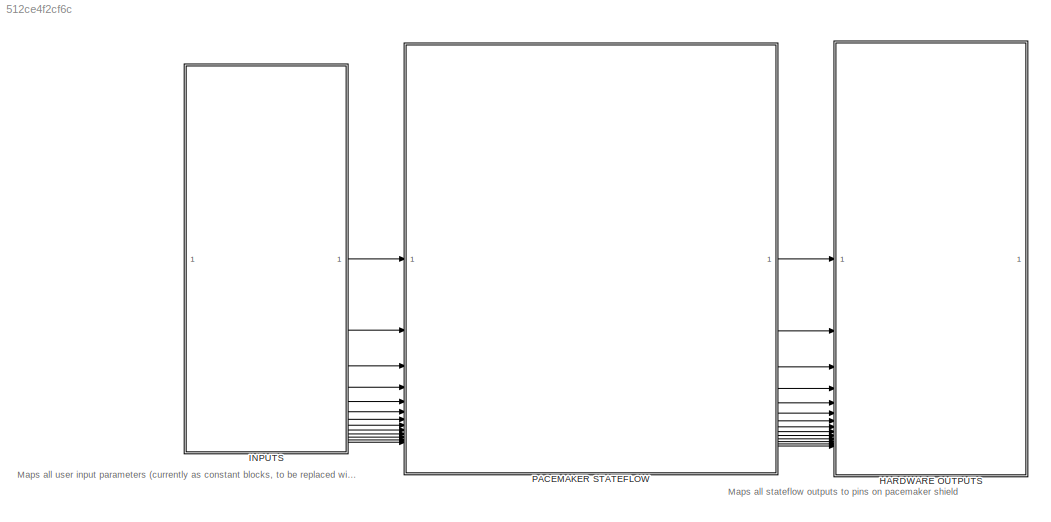
MODEL slx_512ce4f2cf6c
KIND model
CONFIG AbsTol = auto
CONFIG EnableMultiTasking = on
CONFIG FixedStep = 1e-3
CONFIG MaxStep = auto
CONFIG MinStep = auto
CONFIG RelTol = 1e-3
CONFIG SampleTimeConstraint = Unconstrained
CONFIG SolverName = FixedStepAuto
CONFIG StartTime = 0.0
CONFIG StopTime = 10
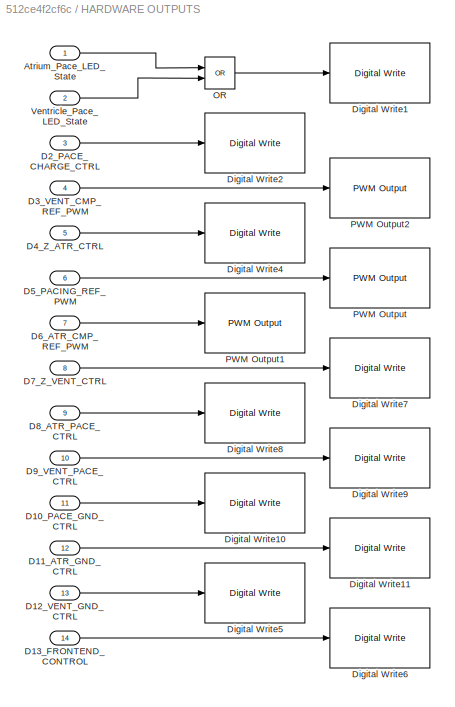
BLOCK [SubSystem] HARDWARE OUTPUTS
BLOCK [Inport] HARDWARE OUTPUTS/Atrium_Pace_LED_State
BLOCK [Inport] HARDWARE OUTPUTS/D10_PACE_GND_CTRL
  Port = 11
BLOCK [Inport] HARDWARE OUTPUTS/D11_ATR_GND_CTRL
  Port = 12
BLOCK [Inport] HARDWARE OUTPUTS/D12_VENT_GND_CTRL
  Port = 13
BLOCK [Inport] HARDWARE OUTPUTS/D13_FRONTEND_CONTROL
  Port = 14
BLOCK [Inport] HARDWARE OUTPUTS/D2_PACE_CHARGE_CTRL
  Port = 3
BLOCK [Inport] HARDWARE OUTPUTS/D3_VENT_CMP_REF_PWM
  Port = 4
BLOCK [Inport] HARDWARE OUTPUTS/D4_Z_ATR_CTRL
  Port = 5
BLOCK [Inport] HARDWARE OUTPUTS/D5_PACING_REF_PWM
  Port = 6
BLOCK [Inport] HARDWARE OUTPUTS/D6_ATR_CMP_REF_PWM
  Port = 7
BLOCK [Inport] HARDWARE OUTPUTS/D7_Z_VENT_CTRL
  Port = 8
BLOCK [Inport] HARDWARE OUTPUTS/D8_ATR_PACE_CTRL
  Port = 9
BLOCK [Inport] HARDWARE OUTPUTS/D9_VENT_PACE_CTRL
  Port = 10
BLOCK [Reference] HARDWARE OUTPUTS/Digital Write1  REF=frdmk64flib/Digital Write
  SourceBlock = frdmk64flib/Digital Write
  SourceType = freedomk64f.DigitalWrite
BLOCK [Reference] HARDWARE OUTPUTS/Digital Write10  REF=frdmk64flib/Digital Write
  SourceBlock = frdmk64flib/Digital Write
  SourceType = freedomk64f.DigitalWrite
BLOCK [Reference] HARDWARE OUTPUTS/Digital Write11  REF=frdmk64flib/Digital Write
  SourceBlock = frdmk64flib/Digital Write
  SourceType = freedomk64f.DigitalWrite
BLOCK [Reference] HARDWARE OUTPUTS/Digital Write2  REF=frdmk64flib/Digital Write
  SourceBlock = frdmk64flib/Digital Write
  SourceType = freedomk64f.DigitalWrite
BLOCK [Reference] HARDWARE OUTPUTS/Digital Write4  REF=frdmk64flib/Digital Write
  SourceBlock = frdmk64flib/Digital Write
  SourceType = freedomk64f.DigitalWrite
BLOCK [Reference] HARDWARE OUTPUTS/Digital Write5  REF=frdmk64flib/Digital Write
  SourceBlock = frdmk64flib/Digital Write
  SourceType = freedomk64f.DigitalWrite
BLOCK [Reference] HARDWARE OUTPUTS/Digital Write6  REF=frdmk64flib/Digital Write
  SourceBlock = frdmk64flib/Digital Write
  SourceType = freedomk64f.DigitalWrite
BLOCK [Reference] HARDWARE OUTPUTS/Digital Write7  REF=frdmk64flib/Digital Write
  SourceBlock = frdmk64flib/Digital Write
  SourceType = freedomk64f.DigitalWrite
BLOCK [Reference] HARDWARE OUTPUTS/Digital Write8  REF=frdmk64flib/Digital Write
  SourceBlock = frdmk64flib/Digital Write
  SourceType = freedomk64f.DigitalWrite
BLOCK [Reference] HARDWARE OUTPUTS/Digital Write9  REF=frdmk64flib/Digital Write
  SourceBlock = frdmk64flib/Digital Write
  SourceType = freedomk64f.DigitalWrite
BLOCK [Logic] HARDWARE OUTPUTS/OR
  AllPortsSameDT = off
  IconShape = distinctive
  Operator = OR
  OutDataTypeStr = boolean
BLOCK [Reference] HARDWARE OUTPUTS/PWM Output  REF=frdmk64flib/PWM Output
  SourceBlock = frdmk64flib/PWM Output
  SourceType = freedomk64f.PWMOutput
BLOCK [Reference] HARDWARE OUTPUTS/PWM Output1  REF=frdmk64flib/PWM Output
  SourceBlock = frdmk64flib/PWM Output
  SourceType = freedomk64f.PWMOutput
BLOCK [Reference] HARDWARE OUTPUTS/PWM Output2  REF=frdmk64flib/PWM Output
  SourceBlock = frdmk64flib/PWM Output
  SourceType = freedomk64f.PWMOutput
BLOCK [Inport] HARDWARE OUTPUTS/Ventricle_Pace_LED_State
  Port = 2
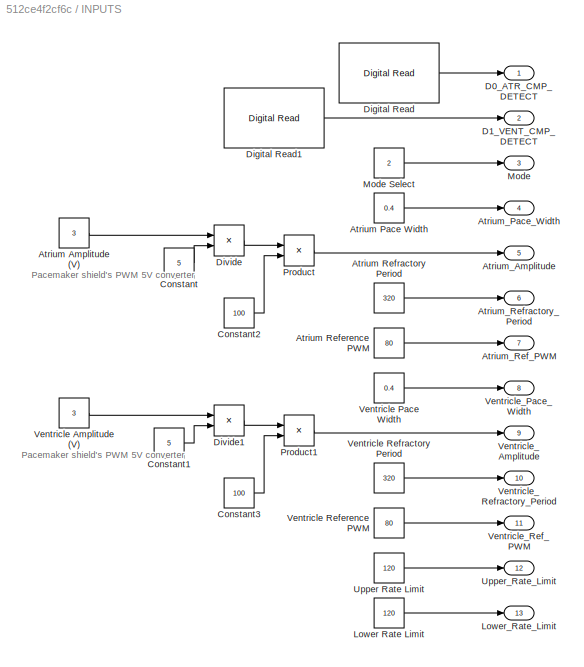
BLOCK [SubSystem] INPUTS
BLOCK [Constant] INPUTS/Atrium Amplitude (V)
  Value = 3
BLOCK [Constant] INPUTS/Atrium Pace Width
  Value = 0.4
BLOCK [Constant] INPUTS/Atrium Reference PWM
  Value = 80
BLOCK [Constant] INPUTS/Atrium Refractory Period
  Value = 320
BLOCK [Outport] INPUTS/Atrium_Amplitude
  Port = 5
BLOCK [Outport] INPUTS/Atrium_Pace_Width
  Port = 4
BLOCK [Outport] INPUTS/Atrium_Ref_PWM
  Port = 7
BLOCK [Outport] INPUTS/Atrium_Refractory_Period
  Port = 6
BLOCK [Constant] INPUTS/Constant
  Value = 5
BLOCK [Constant] INPUTS/Constant1
  Value = 5
BLOCK [Constant] INPUTS/Constant2
  Value = 100
BLOCK [Constant] INPUTS/Constant3
  Value = 100
BLOCK [Outport] INPUTS/D0_ATR_CMP_DETECT
BLOCK [Outport] INPUTS/D1_VENT_CMP_DETECT
  Port = 2
BLOCK [Reference] INPUTS/Digital Read  REF=frdmk64flib/Digital Read
  SourceBlock = frdmk64flib/Digital Read
  SourceType = freedomk64f.DigitalRead
BLOCK [Reference] INPUTS/Digital Read1  REF=frdmk64flib/Digital Read
  SourceBlock = frdmk64flib/Digital Read
  SourceType = freedomk64f.DigitalRead
BLOCK [Product] INPUTS/Divide
  Inputs = */
BLOCK [Product] INPUTS/Divide1
  Inputs = */
BLOCK [Constant] INPUTS/Lower Rate Limit
  Value = 120
BLOCK [Outport] INPUTS/Lower_Rate_Limit
  Port = 13
BLOCK [Outport] INPUTS/Mode
  Port = 3
BLOCK [Constant] INPUTS/Mode Select
  Value = 2
BLOCK [Product] INPUTS/Product
BLOCK [Product] INPUTS/Product1
BLOCK [Constant] INPUTS/Upper Rate Limit
  Value = 120
BLOCK [Outport] INPUTS/Upper_Rate_Limit
  Port = 12
BLOCK [Constant] INPUTS/Ventricle Amplitude (V)
  Value = 3
BLOCK [Constant] INPUTS/Ventricle Pace Width
  Value = 0.4
BLOCK [Constant] INPUTS/Ventricle Reference PWM
  Value = 80
BLOCK [Constant] INPUTS/Ventricle Refractory Period
  Value = 320
BLOCK [Outport] INPUTS/Ventricle_Amplitude
  Port = 9
BLOCK [Outport] INPUTS/Ventricle_Pace_Width
  Port = 8
BLOCK [Outport] INPUTS/Ventricle_Ref_PWM
  Port = 11
BLOCK [Outport] INPUTS/Ventricle_Refractory_Period
  Port = 10
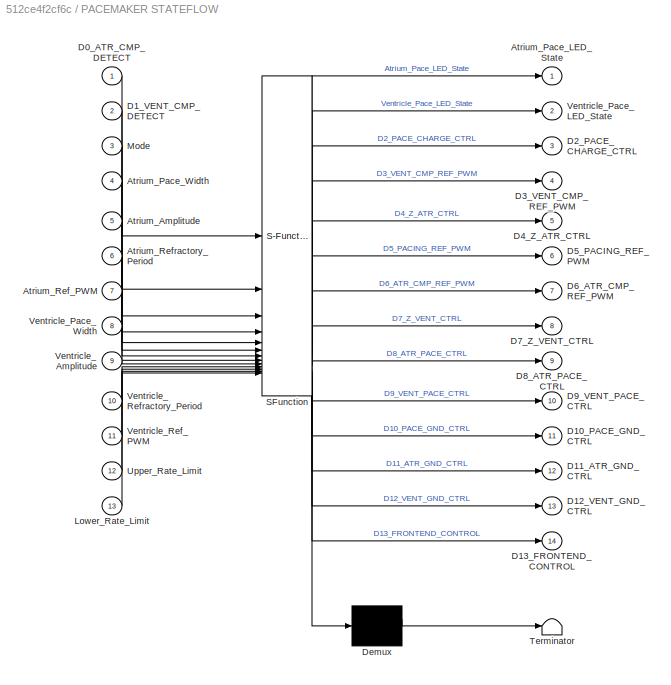
BLOCK [SubSystem] PACEMAKER STATEFLOW
  ErrorFcn = Stateflow.Translate.translate
  PermitHierarchicalResolution = ExplicitOnly
  SFBlockType = Chart
  TreatAsAtomicUnit = on
BLOCK [Demux] PACEMAKER STATEFLOW/ Demux 
  Outputs = 1
BLOCK [S-Function] PACEMAKER STATEFLOW/ SFunction 
  EnableBusSupport = on
  FunctionName = sf_sfun
  PortCounts = [13 15]
  SFcnIsStateOwnerBlock = off
  SFunctionDeploymentMode = off
  Tag = Stateflow S-Function 3
BLOCK [Terminator] PACEMAKER STATEFLOW/ Terminator 
BLOCK [Inport] PACEMAKER STATEFLOW/Atrium_Amplitude
  Port = 5
BLOCK [Outport] PACEMAKER STATEFLOW/Atrium_Pace_LED_State
BLOCK [Inport] PACEMAKER STATEFLOW/Atrium_Pace_Width
  Port = 4
BLOCK [Inport] PACEMAKER STATEFLOW/Atrium_Ref_PWM
  Port = 7
BLOCK [Inport] PACEMAKER STATEFLOW/Atrium_Refractory_Period
  Port = 6
BLOCK [Inport] PACEMAKER STATEFLOW/D0_ATR_CMP_DETECT
BLOCK [Outport] PACEMAKER STATEFLOW/D10_PACE_GND_CTRL
  Port = 11
BLOCK [Outport] PACEMAKER STATEFLOW/D11_ATR_GND_CTRL
  Port = 12
BLOCK [Outport] PACEMAKER STATEFLOW/D12_VENT_GND_CTRL
  Port = 13
BLOCK [Outport] PACEMAKER STATEFLOW/D13_FRONTEND_CONTROL
  Port = 14
BLOCK [Inport] PACEMAKER STATEFLOW/D1_VENT_CMP_DETECT
  Port = 2
BLOCK [Outport] PACEMAKER STATEFLOW/D2_PACE_CHARGE_CTRL
  Port = 3
BLOCK [Outport] PACEMAKER STATEFLOW/D3_VENT_CMP_REF_PWM
  Port = 4
BLOCK [Outport] PACEMAKER STATEFLOW/D4_Z_ATR_CTRL
  Port = 5
BLOCK [Outport] PACEMAKER STATEFLOW/D5_PACING_REF_PWM
  Port = 6
BLOCK [Outport] PACEMAKER STATEFLOW/D6_ATR_CMP_REF_PWM
  Port = 7
BLOCK [Outport] PACEMAKER STATEFLOW/D7_Z_VENT_CTRL
  Port = 8
BLOCK [Outport] PACEMAKER STATEFLOW/D8_ATR_PACE_CTRL
  Port = 9
BLOCK [Outport] PACEMAKER STATEFLOW/D9_VENT_PACE_CTRL
  Port = 10
BLOCK [Inport] PACEMAKER STATEFLOW/Lower_Rate_Limit
  Port = 13
BLOCK [Inport] PACEMAKER STATEFLOW/Mode
  Port = 3
BLOCK [Inport] PACEMAKER STATEFLOW/Upper_Rate_Limit
  Port = 12
BLOCK [Inport] PACEMAKER STATEFLOW/Ventricle_Amplitude
  Port = 9
BLOCK [Outport] PACEMAKER STATEFLOW/Ventricle_Pace_LED_State
  Port = 2
BLOCK [Inport] PACEMAKER STATEFLOW/Ventricle_Pace_Width
  Port = 8
BLOCK [Inport] PACEMAKER STATEFLOW/Ventricle_Ref_PWM
  Port = 11
BLOCK [Inport] PACEMAKER STATEFLOW/Ventricle_Refractory_Period
  Port = 10
ANNOTATION (root): Maps all stateflow outputs to pins on pacemaker shield
ANNOTATION (root): Maps all user input parameters (currently as constant blocks, to be replaced with serial communication in later stage)
ANNOTATION INPUTS: Pacemaker shield's PWM 5V converter
LINE HARDWARE OUTPUTS/Atrium_Pace_LED_State:1 -> HARDWARE OUTPUTS/OR:1
LINE HARDWARE OUTPUTS/D10_PACE_GND_CTRL:1 -> HARDWARE OUTPUTS/Digital Write10:1
LINE HARDWARE OUTPUTS/D11_ATR_GND_CTRL:1 -> HARDWARE OUTPUTS/Digital Write11:1
LINE HARDWARE OUTPUTS/D12_VENT_GND_CTRL:1 -> HARDWARE OUTPUTS/Digital Write5:1
LINE HARDWARE OUTPUTS/D13_FRONTEND_CONTROL:1 -> HARDWARE OUTPUTS/Digital Write6:1
LINE HARDWARE OUTPUTS/D2_PACE_CHARGE_CTRL:1 -> HARDWARE OUTPUTS/Digital Write2:1
LINE HARDWARE OUTPUTS/D3_VENT_CMP_REF_PWM:1 -> HARDWARE OUTPUTS/PWM Output2:1
LINE HARDWARE OUTPUTS/D4_Z_ATR_CTRL:1 -> HARDWARE OUTPUTS/Digital Write4:1
LINE HARDWARE OUTPUTS/D5_PACING_REF_PWM:1 -> HARDWARE OUTPUTS/PWM Output:1
LINE HARDWARE OUTPUTS/D6_ATR_CMP_REF_PWM:1 -> HARDWARE OUTPUTS/PWM Output1:1
LINE HARDWARE OUTPUTS/D7_Z_VENT_CTRL:1 -> HARDWARE OUTPUTS/Digital Write7:1
LINE HARDWARE OUTPUTS/D8_ATR_PACE_CTRL:1 -> HARDWARE OUTPUTS/Digital Write8:1
LINE HARDWARE OUTPUTS/D9_VENT_PACE_CTRL:1 -> HARDWARE OUTPUTS/Digital Write9:1
LINE HARDWARE OUTPUTS/OR:1 -> HARDWARE OUTPUTS/Digital Write1:1
LINE HARDWARE OUTPUTS/Ventricle_Pace_LED_State:1 -> HARDWARE OUTPUTS/OR:2
LINE INPUTS/Atrium Amplitude (V):1 -> INPUTS/Divide:1
LINE INPUTS/Atrium Pace Width:1 -> INPUTS/Atrium_Pace_Width:1
LINE INPUTS/Atrium Reference PWM:1 -> INPUTS/Atrium_Ref_PWM:1
LINE INPUTS/Atrium Refractory Period:1 -> INPUTS/Atrium_Refractory_Period:1
LINE INPUTS/Constant1:1 -> INPUTS/Divide1:2
LINE INPUTS/Constant2:1 -> INPUTS/Product:2
LINE INPUTS/Constant3:1 -> INPUTS/Product1:2
LINE INPUTS/Constant:1 -> INPUTS/Divide:2
LINE INPUTS/Digital Read1:1 -> INPUTS/D1_VENT_CMP_DETECT:1
LINE INPUTS/Digital Read:1 -> INPUTS/D0_ATR_CMP_DETECT:1
LINE INPUTS/Divide1:1 -> INPUTS/Product1:1
LINE INPUTS/Divide:1 -> INPUTS/Product:1
LINE INPUTS/Lower Rate Limit:1 -> INPUTS/Lower_Rate_Limit:1
LINE INPUTS/Mode Select:1 -> INPUTS/Mode:1
LINE INPUTS/Product1:1 -> INPUTS/Ventricle_Amplitude:1
LINE INPUTS/Product:1 -> INPUTS/Atrium_Amplitude:1
LINE INPUTS/Upper Rate Limit:1 -> INPUTS/Upper_Rate_Limit:1
LINE INPUTS/Ventricle Amplitude (V):1 -> INPUTS/Divide1:1
LINE INPUTS/Ventricle Pace Width:1 -> INPUTS/Ventricle_Pace_Width:1
LINE INPUTS/Ventricle Reference PWM:1 -> INPUTS/Ventricle_Ref_PWM:1
LINE INPUTS/Ventricle Refractory Period:1 -> INPUTS/Ventricle_Refractory_Period:1
LINE INPUTS:1 -> PACEMAKER STATEFLOW:1
LINE INPUTS:10 -> PACEMAKER STATEFLOW:10
LINE INPUTS:11 -> PACEMAKER STATEFLOW:11
LINE INPUTS:12 -> PACEMAKER STATEFLOW:12
LINE INPUTS:13 -> PACEMAKER STATEFLOW:13
LINE INPUTS:2 -> PACEMAKER STATEFLOW:2
LINE INPUTS:3 -> PACEMAKER STATEFLOW:3
LINE INPUTS:4 -> PACEMAKER STATEFLOW:4
LINE INPUTS:5 -> PACEMAKER STATEFLOW:5
LINE INPUTS:6 -> PACEMAKER STATEFLOW:6
LINE INPUTS:7 -> PACEMAKER STATEFLOW:7
LINE INPUTS:8 -> PACEMAKER STATEFLOW:8
LINE INPUTS:9 -> PACEMAKER STATEFLOW:9
LINE PACEMAKER STATEFLOW:1 -> HARDWARE OUTPUTS:1
LINE PACEMAKER STATEFLOW:10 -> HARDWARE OUTPUTS:10
LINE PACEMAKER STATEFLOW:11 -> HARDWARE OUTPUTS:11
LINE PACEMAKER STATEFLOW:12 -> HARDWARE OUTPUTS:12
LINE PACEMAKER STATEFLOW:13 -> HARDWARE OUTPUTS:13
LINE PACEMAKER STATEFLOW:14 -> HARDWARE OUTPUTS:14
LINE PACEMAKER STATEFLOW:2 -> HARDWARE OUTPUTS:2
LINE PACEMAKER STATEFLOW:3 -> HARDWARE OUTPUTS:3
LINE PACEMAKER STATEFLOW:4 -> HARDWARE OUTPUTS:4
LINE PACEMAKER STATEFLOW:5 -> HARDWARE OUTPUTS:5
LINE PACEMAKER STATEFLOW:6 -> HARDWARE OUTPUTS:6
LINE PACEMAKER STATEFLOW:7 -> HARDWARE OUTPUTS:7
LINE PACEMAKER STATEFLOW:8 -> HARDWARE OUTPUTS:8
LINE PACEMAKER STATEFLOW:9 -> HARDWARE OUTPUTS:9
CHART PACEMAKER STATEFLOW states=16 transitions=31
  STATE_LABEL 'AOO'
  STATE_LABEL 'Pace\n\nentry:\nD5_PACING_REF_PWM = 0\nD2_PACE_CHARGE_CTRL=0;\nD10_PACE_GND_CTRL=1;\nD8_ATR_PACE_CTRL=1;\nD11_ATR_GND_CTRL=0;\nD4_Z_ATR_CTRL=0;\nD7_Z_VENT_CTRL=0;\nD12_VENT_GND_CTRL=0;\nD9_VENT_PACE_CTRL=0;\nAtrium_Pace_LED_State=1;\n'  <repeated x4 — deduplicated; at blocks: PACEMAKER STATEFLOW>
  STATE_LABEL 'Refractory\n\nentry:\nD10_PACE_GND_CTRL=1;\nD9_VENT_PACE_CTRL=0;\nD4_Z_ATR_CTRL=0;\nD7_Z_VENT_CTRL=0;\nD8_ATR_PACE_CTRL=0;\nD11_ATR_GND_CTRL=1;\nD12_VENT_GND_CTRL=0;\nD2_PACE_CHARGE_CTRL=1;\nD5_PACING_REF_PWM = Atrium_Amplitude\nAtrium_Pace_LED_State=0;\nStandby_Period=(1/(Lower_Rate_Limit))*60000\n'
  STATE_LABEL '[after(Atrium_Pace_Width,msec)]'
  STATE_LABEL '[after(Standby_Period,msec)]'
  STATE_LABEL 'Refractory\n\nentry:\nD10_PACE_GND_CTRL=1;\nD9_VENT_PACE_CTRL=0;\nD4_Z_ATR_CTRL=0;\nD7_Z_VENT_CTRL=0;\nD8_ATR_PACE_CTRL=0;\nD11_ATR_GND_CTRL=1;\nD12_VENT_GND_CTRL=0;\nD2_PACE_CHARGE_CTRL=1;\nD5_PACING_REF_PWM = Atrium_Amplitude\nAtrium_Pace_LED_State=0;\nStandby_Period=(1/(Lower_Rate_Limit))*60000\n'
  STATE_LABEL 'AAI'
  STATE_LABEL 'Refractory\n\nentry:\nD5_PACING_REF_PWM = Atrium_Amplitude\nD10_PACE_GND_CTRL=1;\nD9_VENT_PACE_CTRL=0;\nD4_Z_ATR_CTRL=0;\nD7_Z_VENT_CTRL=0;\nD8_ATR_PACE_CTRL=0;\nD11_ATR_GND_CTRL=1;\nD12_VENT_GND_CTRL=0;\nD2_PACE_CHARGE_CTRL=1;\nD6_ATR_CMP_REF_PWM = Atrium_Ref_PWM;\nAtrium_Pace_LED_State=0;\nStandby_Period=60000/(Lower_Rate_Limit)\n'
  STATE_LABEL 'waiting'
  STATE_LABEL 'Sense'
  STATE_LABEL '[after(Atrium_Pace_Width,msec)]'
  STATE_LABEL '[[after(Atrium_Refractory_Period,msec)]]'
  STATE_LABEL '[D0_ATR_CMP_DETECT == 1]'
  STATE_LABEL 'after(Standby_Period-Atrium_Pace_Width-Atrium_Refractory_Period,msec)'
  STATE_LABEL 'Refractory\n\nentry:\nD5_PACING_REF_PWM = Atrium_Amplitude\nD10_PACE_GND_CTRL=1;\nD9_VENT_PACE_CTRL=0;\nD4_Z_ATR_CTRL=0;\nD7_Z_VENT_CTRL=0;\nD8_ATR_PACE_CTRL=0;\nD11_ATR_GND_CTRL=1;\nD12_VENT_GND_CTRL=0;\nD2_PACE_CHARGE_CTRL=1;\nD6_ATR_CMP_REF_PWM = Atrium_Ref_PWM;\nAtrium_Pace_LED_State=0;\nStandby_Period=60000/(Lower_Rate_Limit)\n'
  STATE_LABEL 'waiting'
  STATE_LABEL 'Sense'
  STATE_LABEL 'VOO'
  STATE_LABEL 'Pace\n\nentry:\nD5_PACING_REF_PWM = 0\nD2_PACE_CHARGE_CTRL=0;\nD10_PACE_GND_CTRL=1;\nD8_ATR_PACE_CTRL=0;\nD11_ATR_GND_CTRL=0;\nD4_Z_ATR_CTRL=0;\nD7_Z_VENT_CTRL=0;\nD12_VENT_GND_CTRL=0;\nD9_VENT_PACE_CTRL=1;\nVentricle_Pace_LED_State=1;\n'
  STATE_LABEL 'Refractory\n\nentry:\nD10_PACE_GND_CTRL=1;\nD9_VENT_PACE_CTRL=0;\nD4_Z_ATR_CTRL=0;\nD7_Z_VENT_CTRL=0;\nD8_ATR_PACE_CTRL=0;\nD11_ATR_GND_CTRL=0;\nD12_VENT_GND_CTRL=1;\nD2_PACE_CHARGE_CTRL=1;\nD5_PACING_REF_PWM = Ventricle_Amplitude\nVentricle_Pace_LED_State=0;\nStandby_Period=(1/(Lower_Rate_Limit))*60000\n'
  STATE_LABEL '[after(Ventricle_Pace_Width,msec)]'
  STATE_LABEL '[after(Standby_Period,msec)]'
  STATE_LABEL 'Pace\n\nentry:\nD5_PACING_REF_PWM = 0\nD2_PACE_CHARGE_CTRL=0;\nD10_PACE_GND_CTRL=1;\nD8_ATR_PACE_CTRL=0;\nD11_ATR_GND_CTRL=0;\nD4_Z_ATR_CTRL=0;\nD7_Z_VENT_CTRL=0;\nD12_VENT_GND_CTRL=0;\nD9_VENT_PACE_CTRL=1;\nVentricle_Pace_LED_State=1;\n'
  STATE_LABEL 'Refractory\n\nentry:\nD10_PACE_GND_CTRL=1;\nD9_VENT_PACE_CTRL=0;\nD4_Z_ATR_CTRL=0;\nD7_Z_VENT_CTRL=0;\nD8_ATR_PACE_CTRL=0;\nD11_ATR_GND_CTRL=0;\nD12_VENT_GND_CTRL=1;\nD2_PACE_CHARGE_CTRL=1;\nD5_PACING_REF_PWM = Ventricle_Amplitude\nVentricle_Pace_LED_State=0;\nStandby_Period=(1/(Lower_Rate_Limit))*60000\n'
  STATE_LABEL 'VVI'
  STATE_LABEL 'Pace\n\nentry:\nD5_PACING_REF_PWM = 0\nD2_PACE_CHARGE_CTRL=0;\nD10_PACE_GND_CTRL=1;\nD8_ATR_PACE_CTRL=0;\nD11_ATR_GND_CTRL=0;\nD4_Z_ATR_CTRL=0;\nD7_Z_VENT_CTRL=0;\nD12_VENT_GND_CTRL=0;\nD9_VENT_PACE_CTRL=1;\n'
  STATE_LABEL 'Refractory\n\nentry:\nD5_PACING_REF_PWM = Ventricle_Amplitude\nD10_PACE_GND_CTRL=1;\nD9_VENT_PACE_CTRL=0;\nD4_Z_ATR_CTRL=0;\nD7_Z_VENT_CTRL=0;\nD8_ATR_PACE_CTRL=0;\nD11_ATR_GND_CTRL=0;\nD12_VENT_GND_CTRL=1;\nD2_PACE_CHARGE_CTRL=1;\nD3_VENT_CMP_REF_PWM = Ventricle_Ref_PWM;\nVentricle_Pace_LED_State=0;\nStandby_Period=60000/(Lower_Rate_Limit)\n'
  STATE_LABEL 'Sense'
  STATE_LABEL 'waiting'
  STATE_LABEL '[after(Ventricle_Pace_Width,msec)]'
  STATE_LABEL '[[after(Ventricle_Refractory_Period,msec)]]'
  STATE_LABEL 'after(Standby_Period-Ventricle_Pace_Width-Ventricle_Refractory_Period,msec)'
  STATE_LABEL '[D1_VENT_CMP_DETECT == 1]'
  STATE_LABEL 'Pace\n\nentry:\nD5_PACING_REF_PWM = 0\nD2_PACE_CHARGE_CTRL=0;\nD10_PACE_GND_CTRL=1;\nD8_ATR_PACE_CTRL=0;\nD11_ATR_GND_CTRL=0;\nD4_Z_ATR_CTRL=0;\nD7_Z_VENT_CTRL=0;\nD12_VENT_GND_CTRL=0;\nD9_VENT_PACE_CTRL=1;\n'
  STATE_LABEL 'Refractory\n\nentry:\nD5_PACING_REF_PWM = Ventricle_Amplitude\nD10_PACE_GND_CTRL=1;\nD9_VENT_PACE_CTRL=0;\nD4_Z_ATR_CTRL=0;\nD7_Z_VENT_CTRL=0;\nD8_ATR_PACE_CTRL=0;\nD11_ATR_GND_CTRL=0;\nD12_VENT_GND_CTRL=1;\nD2_PACE_CHARGE_CTRL=1;\nD3_VENT_CMP_REF_PWM = Ventricle_Ref_PWM;\nVentricle_Pace_LED_State=0;\nStandby_Period=60000/(Lower_Rate_Limit)\n'
  STATE_LABEL 'Sense'
  STATE_LABEL 'waiting'
CHART  states=0 transitions=0
